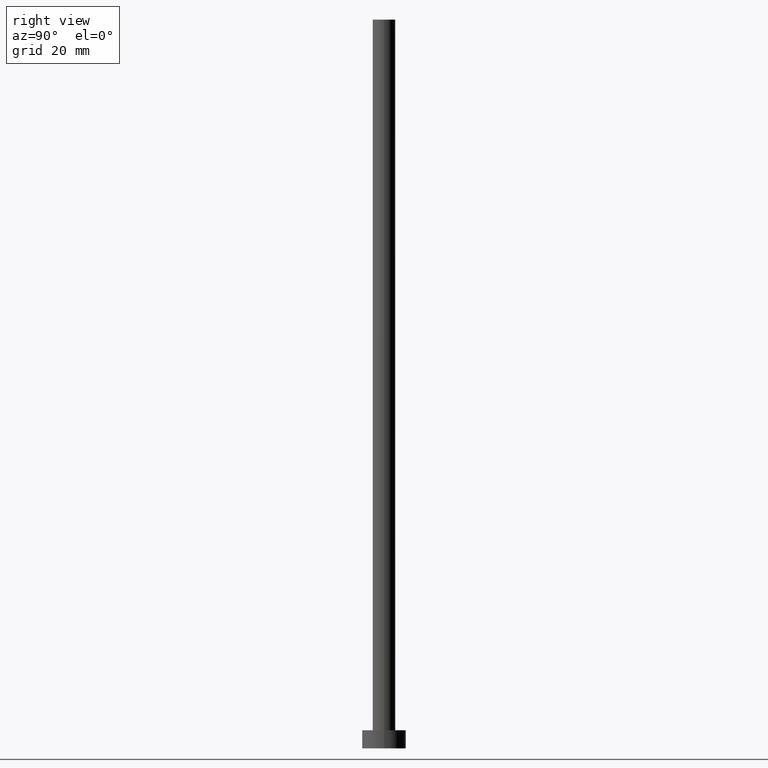
[diagram: clean part render]
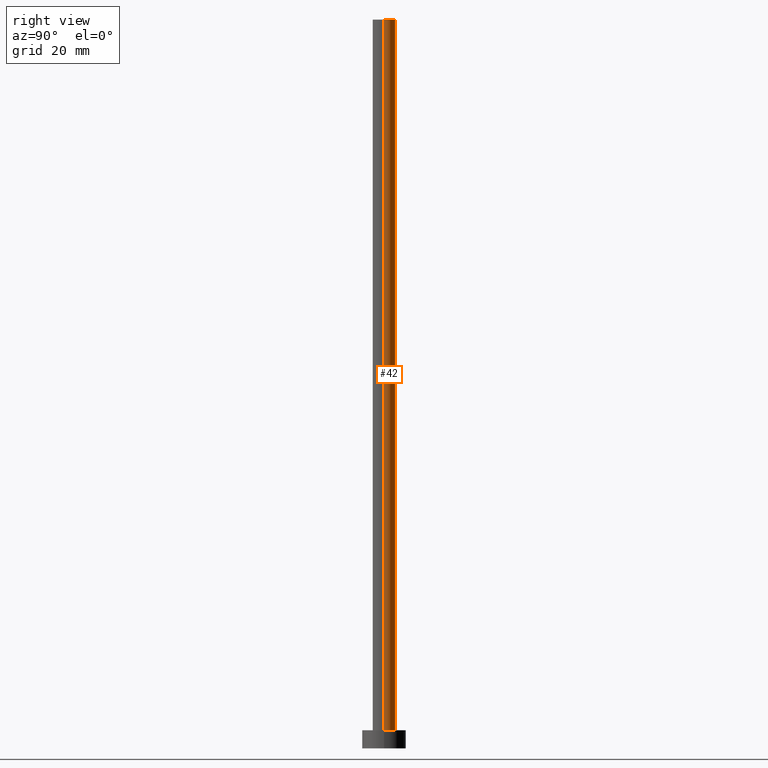
[diagram: same view with one face highlighted and labeled with its STEP entity id]
A machine part, right view. The second image highlights one B-rep face of the part: STEP entity #42.
In plain terms, the highlighted cylindrical surface (edge-blend (fillet) strip) has radius 3.1 mm, axis along (-0, -0, -1).
Its self-contained STEP definition (entity closure, byte-faithful):
#11 = DIRECTION ( 'NONE',  ( 1.000000000000000000, 0.000000000000000000, 0.000000000000000000 ) ) ;
#25 = CARTESIAN_POINT ( 'NONE',  ( 3.100000000000000089, 3.796405077356794918E-16, 200.0000000000000000 ) ) ;
#32 = EDGE_CURVE ( 'NONE', #149, #56, #161, .T. ) ;
#42 = ADVANCED_FACE ( 'NONE', ( #169 ), #220, .T. ) ;
#47 = CARTESIAN_POINT ( 'NONE',  ( -3.100000000000000089, 0.000000000000000000, 5.000000000000000000 ) ) ;
#51 = AXIS2_PLACEMENT_3D ( 'NONE', #153, #207, #11 ) ;
#54 = CARTESIAN_POINT ( 'NONE',  ( -3.100000000000000089, 0.000000000000000000, 200.0000000000000000 ) ) ;
#56 = VERTEX_POINT ( 'NONE', #47 ) ;
#60 = ORIENTED_EDGE ( 'NONE', *, *, #32, .T. ) ;
#70 = DIRECTION ( 'NONE',  ( -0.000000000000000000, -0.000000000000000000, -1.000000000000000000 ) ) ;
#76 = AXIS2_PLACEMENT_3D ( 'NONE', #154, #70, #189 ) ;
#89 = AXIS2_PLACEMENT_3D ( 'NONE', #227, #126, #105 ) ;
#90 = CARTESIAN_POINT ( 'NONE',  ( 3.100000000000000089, 3.796405077356794918E-16, 200.0000000000000000 ) ) ;
#101 = CARTESIAN_POINT ( 'NONE',  ( -3.100000000000000089, 0.000000000000000000, 200.0000000000000000 ) ) ;
#105 = DIRECTION ( 'NONE',  ( 1.000000000000000000, 0.000000000000000000, 0.000000000000000000 ) ) ;
#116 = EDGE_CURVE ( 'NONE', #178, #149, #223, .T. ) ;
#126 = DIRECTION ( 'NONE',  ( 0.000000000000000000, 0.000000000000000000, 1.000000000000000000 ) ) ;
#139 = EDGE_CURVE ( 'NONE', #242, #56, #171, .T. ) ;
#146 = VECTOR ( 'NONE', #173, 1000.000000000000000 ) ;
#149 = VERTEX_POINT ( 'NONE', #249 ) ;
#153 = CARTESIAN_POINT ( 'NONE',  ( 0.000000000000000000, 0.000000000000000000, 200.0000000000000000 ) ) ;
#154 = CARTESIAN_POINT ( 'NONE',  ( 0.000000000000000000, 0.000000000000000000, 200.0000000000000000 ) ) ;
#161 = CIRCLE ( 'NONE', #89, 3.100000000000000089 ) ;
#169 = FACE_OUTER_BOUND ( 'NONE', #231, .T. ) ;
#171 = LINE ( 'NONE', #101, #146 ) ;
#173 = DIRECTION ( 'NONE',  ( -0.000000000000000000, -0.000000000000000000, -1.000000000000000000 ) ) ;
#175 = ORIENTED_EDGE ( 'NONE', *, *, #139, .F. ) ;
#176 = EDGE_CURVE ( 'NONE', #178, #242, #228, .T. ) ;
#178 = VERTEX_POINT ( 'NONE', #25 ) ;
#189 = DIRECTION ( 'NONE',  ( -1.000000000000000000, 0.000000000000000000, 0.000000000000000000 ) ) ;
#203 = VECTOR ( 'NONE', #244, 1000.000000000000000 ) ;
#207 = DIRECTION ( 'NONE',  ( 0.000000000000000000, 0.000000000000000000, 1.000000000000000000 ) ) ;
#220 = CYLINDRICAL_SURFACE ( 'NONE', #76, 3.100000000000000089 ) ;
#223 = LINE ( 'NONE', #90, #203 ) ;
#227 = CARTESIAN_POINT ( 'NONE',  ( 0.000000000000000000, 0.000000000000000000, 5.000000000000000000 ) ) ;
#228 = CIRCLE ( 'NONE', #51, 3.100000000000000089 ) ;
#231 = EDGE_LOOP ( 'NONE', ( #239, #252, #60, #175 ) ) ;
#239 = ORIENTED_EDGE ( 'NONE', *, *, #176, .F. ) ;
#242 = VERTEX_POINT ( 'NONE', #54 ) ;
#244 = DIRECTION ( 'NONE',  ( -0.000000000000000000, -0.000000000000000000, -1.000000000000000000 ) ) ;
#249 = CARTESIAN_POINT ( 'NONE',  ( 3.100000000000000089, 3.796405077356794918E-16, 5.000000000000000000 ) ) ;
#252 = ORIENTED_EDGE ( 'NONE', *, *, #116, .T. ) ;